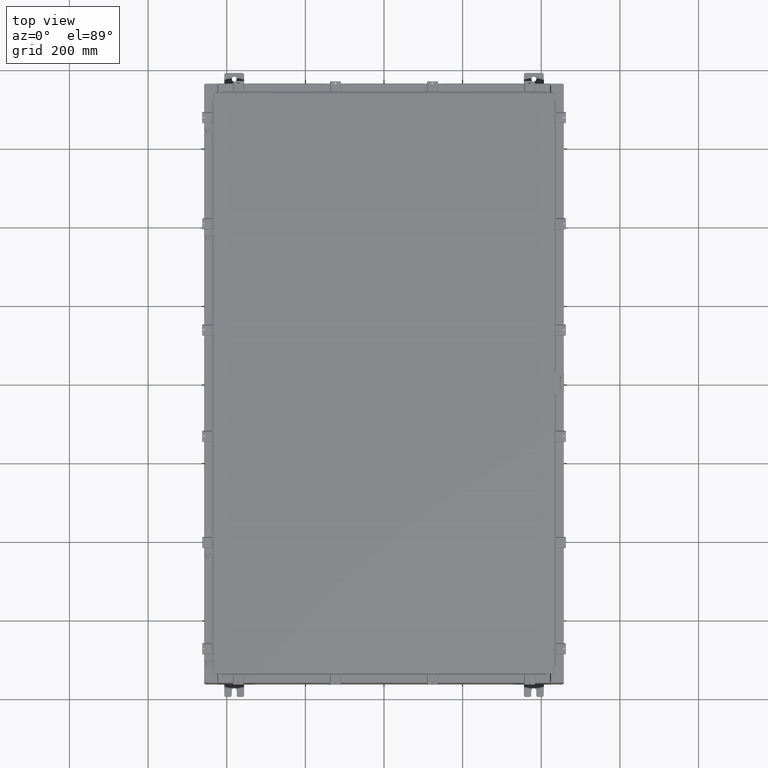
[diagram: clean part render]
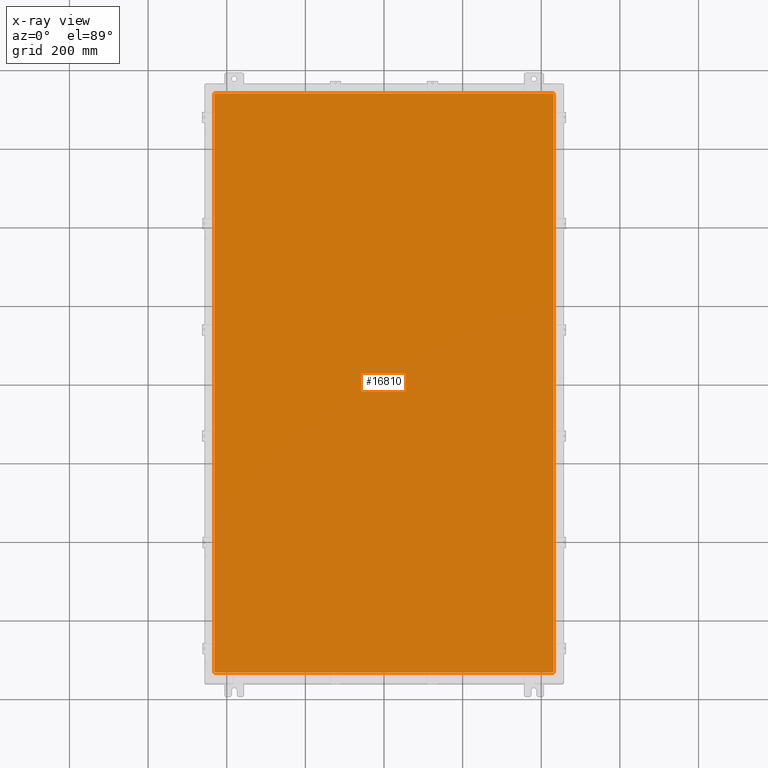
[diagram: x-ray — body ghosted, one internal face saturated and labeled with its STEP entity id]
A machine part, top view, then the same camera in x-ray: the body is ghosted and one INTERNAL B-rep face — a face not visible from any outside direction — is saturated and labeled: STEP entity #16810.
In plain terms, the highlighted planar face has unit normal (0, 0, -1).
Its self-contained STEP definition (entity closure, byte-faithful):
#235 = VECTOR ( 'NONE', #2747, 39.37007874015748100 ) ;
#503 = VECTOR ( 'NONE', #25026, 39.37007874015748100 ) ;
#550 = LINE ( 'NONE', #1367, #22495 ) ;
#1367 = CARTESIAN_POINT ( 'NONE',  ( 16.99030000000000100, 29.00630000000000300, -0.07469999999999804600 ) ) ;
#1975 = VERTEX_POINT ( 'NONE', #18884 ) ;
#2747 = DIRECTION ( 'NONE',  ( 0.0000000000000000000, -1.000000000000000000, 0.0000000000000000000 ) ) ;
#3004 = CARTESIAN_POINT ( 'NONE',  ( 16.99030000000000500, 29.00630000000000000, -0.07470000000000000300 ) ) ;
#3149 = EDGE_CURVE ( 'NONE', #26774, #11216, #5875, .T. ) ;
#3477 = DIRECTION ( 'NONE',  ( 0.0000000000000000000, 0.0000000000000000000, -1.000000000000000000 ) ) ;
#3740 = ORIENTED_EDGE ( 'NONE', *, *, #3149, .F. ) ;
#5875 = LINE ( 'NONE', #23964, #235 ) ;
#7641 = DIRECTION ( 'NONE',  ( 1.000000000000000000, -0.0000000000000000000, -0.0000000000000000000 ) ) ;
#9557 = CARTESIAN_POINT ( 'NONE',  ( -16.99029999999999800, 29.00630000000000000, -0.07470000000000000300 ) ) ;
#9601 = EDGE_CURVE ( 'NONE', #1975, #25983, #11809, .T. ) ;
#11216 = VERTEX_POINT ( 'NONE', #17626 ) ;
#11809 = LINE ( 'NONE', #22896, #503 ) ;
#12680 = ORIENTED_EDGE ( 'NONE', *, *, #13681, .F. ) ;
#13681 = EDGE_CURVE ( 'NONE', #11216, #1975, #18715, .T. ) ;
#15099 = ORIENTED_EDGE ( 'NONE', *, *, #9601, .F. ) ;
#16228 = CARTESIAN_POINT ( 'NONE',  ( 0.0000000000000000000, 0.0000000000000000000, -0.07470000000000000300 ) ) ;
#16266 = DIRECTION ( 'NONE',  ( -1.000000000000000000, -0.0000000000000000000, -0.0000000000000000000 ) ) ;
#16810 = ADVANCED_FACE ( 'NONE', ( #24951 ), #24664, .T. ) ;
#17626 = CARTESIAN_POINT ( 'NONE',  ( -16.99029999999999800, -29.00630000000000300, -0.07470000000000000300 ) ) ;
#18178 = CARTESIAN_POINT ( 'NONE',  ( -16.99029999999999400, -29.00630000000000700, -0.07469999999999804600 ) ) ;
#18355 = DIRECTION ( 'NONE',  ( -1.000000000000000000, 0.0000000000000000000, -0.0000000000000000000 ) ) ;
#18715 = LINE ( 'NONE', #18178, #23717 ) ;
#18884 = CARTESIAN_POINT ( 'NONE',  ( 16.99030000000000500, -29.00630000000000300, -0.07470000000000000300 ) ) ;
#21591 = AXIS2_PLACEMENT_3D ( 'NONE', #16228, #3477, #18355 ) ;
#22495 = VECTOR ( 'NONE', #16266, 39.37007874015748100 ) ;
#22896 = CARTESIAN_POINT ( 'NONE',  ( 16.99030000000000500, -29.00630000000000000, -0.07470000000000019700 ) ) ;
#23152 = EDGE_CURVE ( 'NONE', #25983, #26774, #550, .T. ) ;
#23717 = VECTOR ( 'NONE', #7641, 39.37007874015748100 ) ;
#23964 = CARTESIAN_POINT ( 'NONE',  ( -16.99029999999999800, 29.00629999999998900, -0.07470000000000019700 ) ) ;
#24497 = EDGE_LOOP ( 'NONE', ( #15099, #12680, #3740, #26156 ) ) ;
#24664 = PLANE ( 'NONE',  #21591 ) ;
#24951 = FACE_OUTER_BOUND ( 'NONE', #24497, .T. ) ;
#25026 = DIRECTION ( 'NONE',  ( 0.0000000000000000000, 1.000000000000000000, 0.0000000000000000000 ) ) ;
#25983 = VERTEX_POINT ( 'NONE', #3004 ) ;
#26156 = ORIENTED_EDGE ( 'NONE', *, *, #23152, .F. ) ;
#26774 = VERTEX_POINT ( 'NONE', #9557 ) ;